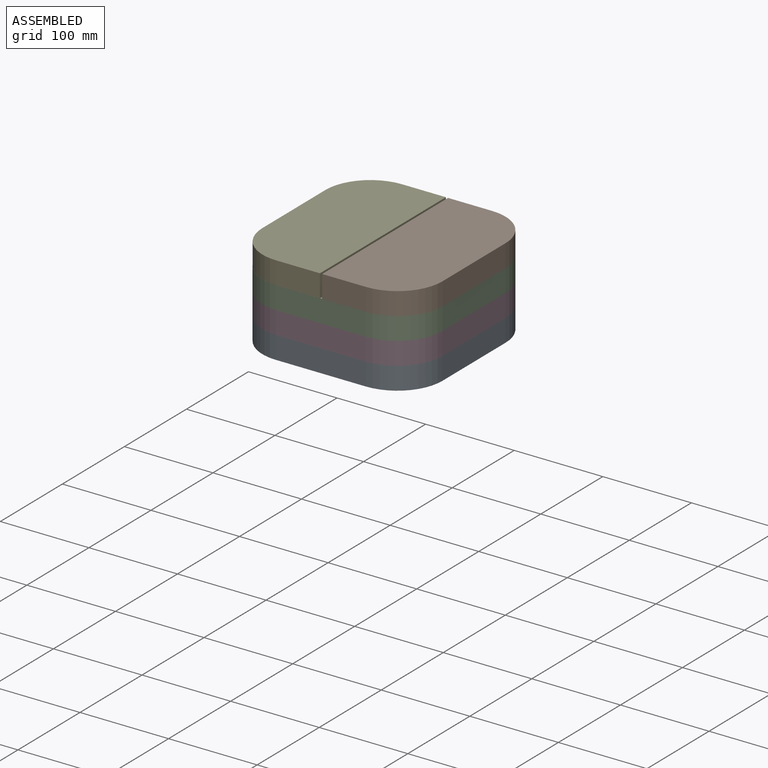
[diagram: assembled view]
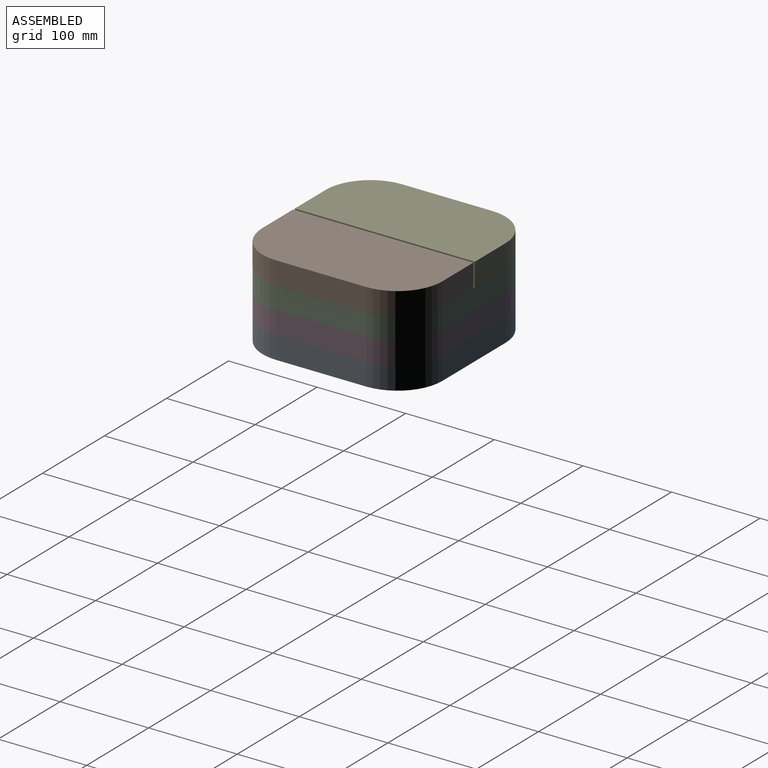
[diagram: assembled view, second angle]
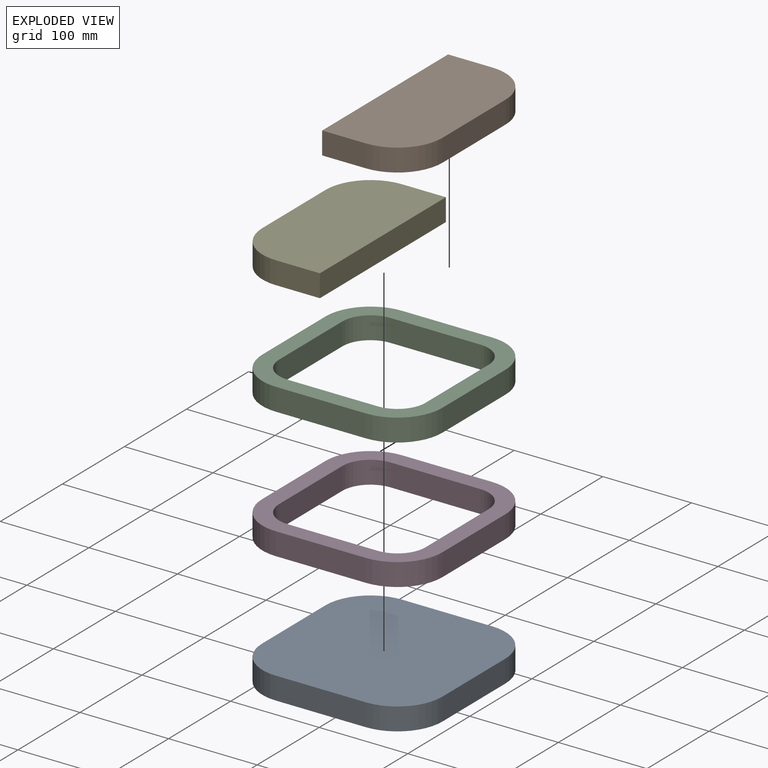
[diagram: exploded view]
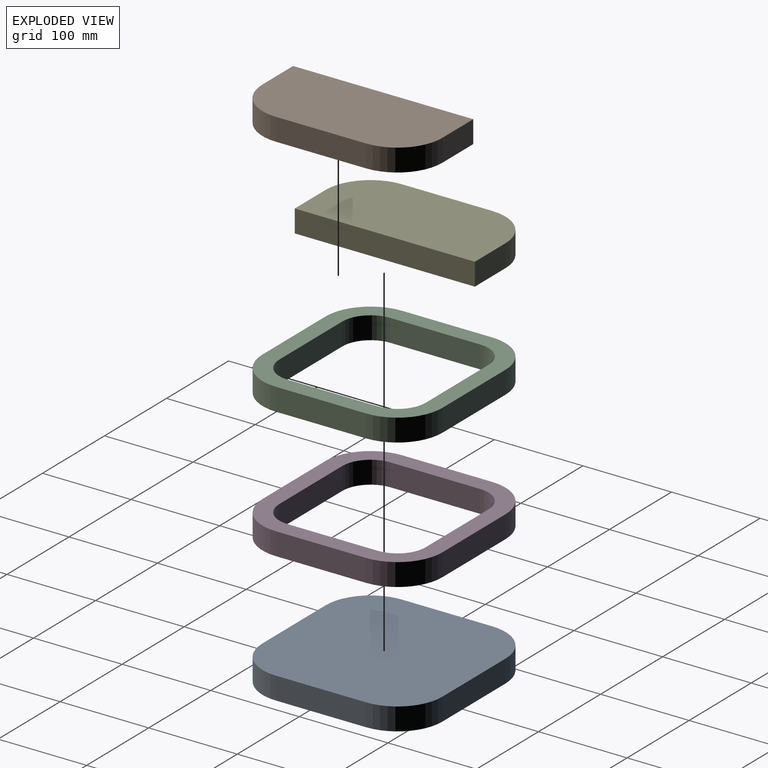
[diagram: exploded view, second angle]
ASSEMBLY  parts=5 mates=4
PART A: 10 faces, bbox 203.2x203.2x25.4 mm
  f0: cylinder r=50.8mm len=50.8mm, axis (0,0,-1), area 2026.8mm2, adj f1,f7,f8,f9
  f1: plane 101.6x25.4mm, normal (0,-1,0), area 2580.6mm2, adj f0,f2,f8,f9
  f2: cylinder r=50.8mm len=50.8mm, axis (0,0,-1), area 2026.8mm2, adj f1,f3,f8,f9
  f3: plane 101.6x25.4mm, normal (1,0,0), area 2580.6mm2, adj f2,f4,f8,f9
  f4: cylinder r=50.8mm len=50.8mm, axis (0,0,-1), area 2026.8mm2, adj f3,f5,f8,f9
  f5: plane 101.6x25.4mm, normal (0,1,0), area 2580.6mm2, adj f4,f6,f8,f9
  f6: cylinder r=50.8mm len=50.8mm, axis (0,0,-1), area 2026.8mm2, adj f5,f7,f8,f9
  f7: plane 101.6x25.4mm, normal (-1,0,0), area 2580.6mm2, adj f0,f6,f8,f9
  f8: plane 203.2x203.2mm, normal (0,0,1), area 39075mm2, adj f0,f1,f2,f3,f4,f5,f6,f7
  f9: plane 203.2x203.2mm, normal (0,0,-1), area 39075mm2, adj f0,f1,f2,f3,f4,f5,f6,f7
PART B: 8 faces, bbox 100.3x203.2x25.4 mm
  f0: plane 49.53x25.4mm, normal (0,1,0), area 1258.1mm2, adj f1,f5,f6,f7
  f1: plane 203.2x25.4mm, normal (-1,0,0), area 5161.3mm2, adj f0,f2,f6,f7
  f2: plane 49.53x25.4mm, normal (0,-1,0), area 1258.1mm2, adj f1,f3,f6,f7
  f3: cylinder r=50.8mm len=50.8mm, axis (0,0,-1), area 2026.8mm2, adj f2,f4,f6,f7
  f4: plane 101.6x25.4mm, normal (1,0,0), area 2580.6mm2, adj f3,f5,f6,f7
  f5: cylinder r=50.8mm len=50.8mm, axis (0,0,-1), area 2026.8mm2, adj f0,f4,f6,f7
  f6: plane 203.2x100.33mm, normal (0,0,1), area 19279.4mm2, adj f0,f1,f2,f3,f4,f5
  f7: plane 203.2x100.33mm, normal (0,0,-1), area 19279.4mm2, adj f0,f1,f2,f3,f4,f5
PART C: 18 faces, bbox 203.2x203.2x25.4 mm
  f0: cylinder r=50.8mm len=50.8mm, axis (0,0,-1), area 2026.8mm2, adj f1,f15,f16,f17
  f1: plane 101.6x25.4mm, normal (0,-1,0), area 2580.6mm2, adj f0,f2,f16,f17
  f2: cylinder r=50.8mm len=50.8mm, axis (0,0,-1), area 2026.8mm2, adj f1,f3,f16,f17
  f3: plane 101.6x25.4mm, normal (1,0,0), area 2580.6mm2, adj f2,f4,f16,f17
  f4: cylinder r=50.8mm len=50.8mm, axis (0,0,-1), area 2026.8mm2, adj f3,f5,f16,f17
  f5: plane 101.6x25.4mm, normal (0,1,0), area 2580.6mm2, adj f4,f6,f16,f17
  f6: cylinder r=50.8mm len=50.8mm, axis (0,0,-1), area 2026.8mm2, adj f5,f15,f16,f17
  f7: cylinder r=31.75mm len=31.75mm, axis (0,0,-1), area 1266.8mm2, adj f8,f14,f16,f17
  f8: plane 101.6x25.4mm, normal (1,0,0), area 2580.6mm2, adj f7,f9,f16,f17
  f9: cylinder r=31.75mm len=31.75mm, axis (0,0,-1), area 1266.8mm2, adj f8,f10,f16,f17
  f10: plane 101.6x25.4mm, normal (0,-1,0), area 2580.6mm2, adj f9,f11,f16,f17
  f11: cylinder r=31.75mm len=31.75mm, axis (0,0,-1), area 1266.8mm2, adj f10,f12,f16,f17
  f12: plane 101.6x25.4mm, normal (-1,0,0), area 2580.6mm2, adj f11,f13,f16,f17
  f13: cylinder r=31.75mm len=31.75mm, axis (0,0,-1), area 1266.8mm2, adj f12,f14,f16,f17
  f14: plane 101.6x25.4mm, normal (0,1,0), area 2580.6mm2, adj f7,f13,f16,f17
  f15: plane 101.6x25.4mm, normal (-1,0,0), area 2580.6mm2, adj f0,f6,f16,f17
  f16: plane 203.2x203.2mm, normal (0,0,1), area 12682.3mm2, adj f0,f1,f2,f3,f4,f5,f6,f7
  f17: plane 203.2x203.2mm, normal (0,0,-1), area 12682.3mm2, adj f0,f1,f2,f3,f4,f5,f6,f7
PART D: same geometry as C
PART E: 8 faces, bbox 100.3x203.2x25.4 mm
  f0: plane 203.2x25.4mm, normal (1,0,0), area 5161.3mm2, adj f1,f5,f6,f7
  f1: plane 49.53x25.4mm, normal (0,1,0), area 1258.1mm2, adj f0,f2,f6,f7
  f2: cylinder r=50.8mm len=50.8mm, axis (0,0,-1), area 2026.8mm2, adj f1,f3,f6,f7
  f3: plane 101.6x25.4mm, normal (-1,0,0), area 2580.6mm2, adj f2,f4,f6,f7
  f4: cylinder r=50.8mm len=50.8mm, axis (0,0,-1), area 2026.8mm2, adj f3,f5,f6,f7
  f5: plane 49.53x25.4mm, normal (0,-1,0), area 1258.1mm2, adj f0,f4,f6,f7
  f6: plane 203.2x100.33mm, normal (0,0,1), area 19279.4mm2, adj f0,f1,f2,f3,f4,f5
  f7: plane 203.2x100.33mm, normal (0,0,-1), area 19279.4mm2, adj f0,f1,f2,f3,f4,f5
PLACE A t=(555.34,54.18,-63.5)mm fixed
PLACE B rot(axis=(0,0,1),0.1deg) t=(555.49,54.19,12.7)mm
PLACE C t=(555.34,54.18,-12.7)mm
PLACE D t=(555.34,54.18,-38.1)mm
PLACE E rot(axis=(0,0,1),0deg) t=(555.45,54.25,12.7)mm
MATE fastened D.f16 <-> C.f17  axis (0,0,1) through (490.01,220.29,-12.7)mm
MATE fastened A.f8 <-> D.f17  axis (0,0,1) through (388.41,118.69,-38.1)mm
MATE revolute C.f16 <-> E.f7  axis (0,0,1) through (439.21,220.29,12.7)mm
MATE revolute B.f7 <-> C.f16  axis (0,0,-1) through (540.81,220.29,12.7)mm
